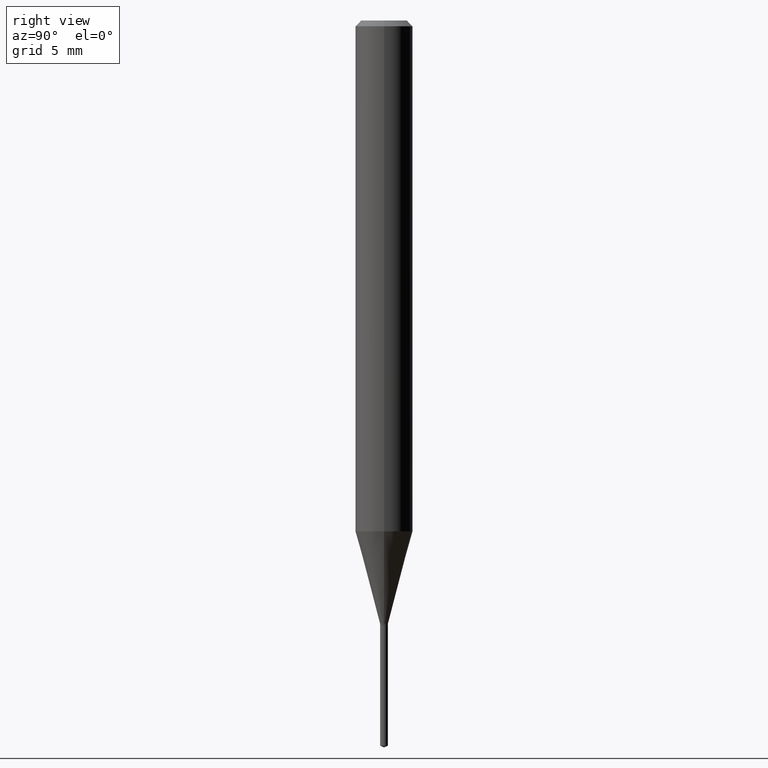
[diagram: clean part render]
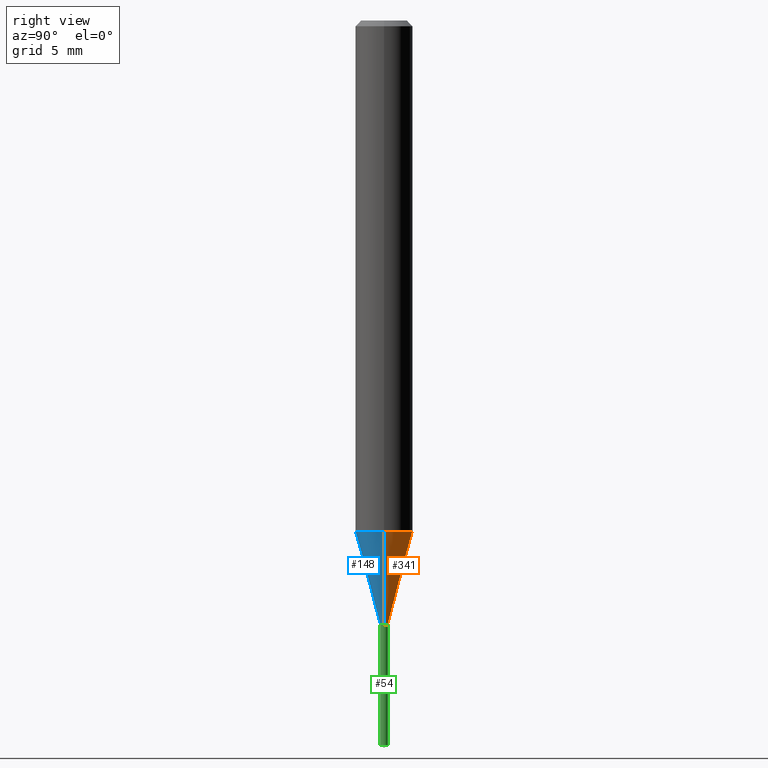
[diagram: same view with three faces highlighted in distinct colors, each labeled with its STEP entity id]
A machine part, right view with three faces highlighted in distinct colors.
Their STEP definitions:

[orange] entity #341 — the highlighted conical surface has half-angle 15 deg.
#8 = DIRECTION ( 'NONE',  ( -0.2588190451025211281, 5.211531920934547886E-15, 0.9659258262890679791 ) ) ;
#12 = LINE ( 'NONE', #240, #439 ) ;
#25 = DIRECTION ( 'NONE',  ( 0.2588190451025211281, 1.565188264969622954E-15, 0.9659258262890679791 ) ) ;
#29 = AXIS2_PLACEMENT_3D ( 'NONE', #307, #64, #231 ) ;
#35 = CARTESIAN_POINT ( 'NONE',  ( 0.05905000000000013016, -4.083166651296605957E-15, -1.051365408813987212 ) ) ;
#41 = CIRCLE ( 'NONE', #29, 0.05905000000000013016 ) ;
#49 = VERTEX_POINT ( 'NONE', #124 ) ;
#55 = VECTOR ( 'NONE', #25, 39.37007874015748854 ) ;
#64 = DIRECTION ( 'NONE',  ( -2.445468806185136597E-29, 3.491481338843145583E-15, 1.000000000000000000 ) ) ;
#77 = EDGE_LOOP ( 'NONE', ( #261, #358, #79, #306 ) ) ;
#79 = ORIENTED_EDGE ( 'NONE', *, *, #273, .F. ) ;
#84 = VERTEX_POINT ( 'NONE', #369 ) ;
#86 = VERTEX_POINT ( 'NONE', #35 ) ;
#104 = FACE_OUTER_BOUND ( 'NONE', #77, .T. ) ;
#124 = CARTESIAN_POINT ( 'NONE',  ( -0.05905000000000013016, -3.251247219712891149E-15, -1.051365408813987212 ) ) ;
#140 = DIRECTION ( 'NONE',  ( -2.445468806185136597E-29, 3.491481338843145583E-15, 1.000000000000000000 ) ) ;
#144 = CIRCLE ( 'NONE', #311, 0.008049999999999999864 ) ;
#160 = LINE ( 'NONE', #315, #55 ) ;
#170 = CARTESIAN_POINT ( 'NONE',  ( -0.008049999999999999864, -4.281490595484747109E-15, -1.241700000000000026 ) ) ;
#231 = DIRECTION ( 'NONE',  ( 1.000000000000000000, -6.982962677686265133E-15, 0.000000000000000000 ) ) ;
#240 = CARTESIAN_POINT ( 'NONE',  ( -0.008049999999999999864, -4.278173688212845858E-15, -1.241700000000000026 ) ) ;
#247 = EDGE_CURVE ( 'NONE', #84, #349, #144, .T. ) ;
#253 = DIRECTION ( 'NONE',  ( -2.445468806185136597E-29, 3.491481338843145583E-15, 1.000000000000000000 ) ) ;
#261 = ORIENTED_EDGE ( 'NONE', *, *, #247, .T. ) ;
#266 = DIRECTION ( 'NONE',  ( 1.000000000000000000, -6.982962677686314831E-15, 0.000000000000000000 ) ) ;
#273 = EDGE_CURVE ( 'NONE', #86, #49, #41, .T. ) ;
#286 = CARTESIAN_POINT ( 'NONE',  ( 3.036538616640084053E-29, -4.335372378441533934E-15, -1.241700000000000026 ) ) ;
#305 = EDGE_CURVE ( 'NONE', #349, #49, #12, .T. ) ;
#306 = ORIENTED_EDGE ( 'NONE', *, *, #446, .F. ) ;
#307 = CARTESIAN_POINT ( 'NONE',  ( 2.571081311156689503E-29, -3.670822705179231037E-15, -1.051365408813987212 ) ) ;
#311 = AXIS2_PLACEMENT_3D ( 'NONE', #478, #253, #266 ) ;
#315 = CARTESIAN_POINT ( 'NONE',  ( 0.008049999999999999864, -4.391585227996908716E-15, -1.241700000000000026 ) ) ;
#341 = ADVANCED_FACE ( 'NONE', ( #104 ), #352, .T. ) ;
#349 = VERTEX_POINT ( 'NONE', #170 ) ;
#352 = CONICAL_SURFACE ( 'NONE', #483, 0.008049999999999999864, 0.2617993877991498519 ) ;
#358 = ORIENTED_EDGE ( 'NONE', *, *, #305, .T. ) ;
#369 = CARTESIAN_POINT ( 'NONE',  ( 0.008049999999999999864, -4.391585227996908716E-15, -1.241700000000000026 ) ) ;
#439 = VECTOR ( 'NONE', #8, 39.37007874015748854 ) ;
#441 = DIRECTION ( 'NONE',  ( 1.000000000000000000, -6.982962677686314831E-15, 0.000000000000000000 ) ) ;
#446 = EDGE_CURVE ( 'NONE', #84, #86, #160, .T. ) ;
#478 = CARTESIAN_POINT ( 'NONE',  ( 3.036538616640084053E-29, -4.335372378441533934E-15, -1.241700000000000026 ) ) ;
#483 = AXIS2_PLACEMENT_3D ( 'NONE', #286, #140, #441 ) ;

[blue] entity #148 — the highlighted conical surface has half-angle 15 deg.
#8 = DIRECTION ( 'NONE',  ( -0.2588190451025211281, 5.211531920934547886E-15, 0.9659258262890679791 ) ) ;
#12 = LINE ( 'NONE', #240, #439 ) ;
#14 = DIRECTION ( 'NONE',  ( 1.000000000000000000, -6.982962677686314831E-15, 0.000000000000000000 ) ) ;
#25 = DIRECTION ( 'NONE',  ( 0.2588190451025211281, 1.565188264969622954E-15, 0.9659258262890679791 ) ) ;
#35 = CARTESIAN_POINT ( 'NONE',  ( 0.05905000000000013016, -4.083166651296605957E-15, -1.051365408813987212 ) ) ;
#49 = VERTEX_POINT ( 'NONE', #124 ) ;
#55 = VECTOR ( 'NONE', #25, 39.37007874015748854 ) ;
#60 = DIRECTION ( 'NONE',  ( -2.445468806185136597E-29, 3.491481338843145583E-15, 1.000000000000000000 ) ) ;
#84 = VERTEX_POINT ( 'NONE', #369 ) ;
#86 = VERTEX_POINT ( 'NONE', #35 ) ;
#100 = CIRCLE ( 'NONE', #219, 0.008049999999999999864 ) ;
#109 = EDGE_CURVE ( 'NONE', #349, #84, #100, .T. ) ;
#124 = CARTESIAN_POINT ( 'NONE',  ( -0.05905000000000013016, -3.251247219712891149E-15, -1.051365408813987212 ) ) ;
#133 = FACE_OUTER_BOUND ( 'NONE', #153, .T. ) ;
#148 = ADVANCED_FACE ( 'NONE', ( #133 ), #245, .T. ) ;
#153 = EDGE_LOOP ( 'NONE', ( #155, #296, #417, #458 ) ) ;
#155 = ORIENTED_EDGE ( 'NONE', *, *, #305, .F. ) ;
#160 = LINE ( 'NONE', #315, #55 ) ;
#163 = DIRECTION ( 'NONE',  ( -2.445468806185136597E-29, 3.491481338843145583E-15, 1.000000000000000000 ) ) ;
#170 = CARTESIAN_POINT ( 'NONE',  ( -0.008049999999999999864, -4.281490595484747109E-15, -1.241700000000000026 ) ) ;
#215 = EDGE_CURVE ( 'NONE', #49, #86, #455, .T. ) ;
#219 = AXIS2_PLACEMENT_3D ( 'NONE', #251, #60, #14 ) ;
#240 = CARTESIAN_POINT ( 'NONE',  ( -0.008049999999999999864, -4.278173688212845858E-15, -1.241700000000000026 ) ) ;
#245 = CONICAL_SURFACE ( 'NONE', #350, 0.008049999999999999864, 0.2617993877991498519 ) ;
#251 = CARTESIAN_POINT ( 'NONE',  ( 3.036538616640084053E-29, -4.335372378441533934E-15, -1.241700000000000026 ) ) ;
#284 = DIRECTION ( 'NONE',  ( 1.000000000000000000, -6.982962677686265133E-15, 0.000000000000000000 ) ) ;
#296 = ORIENTED_EDGE ( 'NONE', *, *, #109, .T. ) ;
#305 = EDGE_CURVE ( 'NONE', #349, #49, #12, .T. ) ;
#315 = CARTESIAN_POINT ( 'NONE',  ( 0.008049999999999999864, -4.391585227996908716E-15, -1.241700000000000026 ) ) ;
#325 = CARTESIAN_POINT ( 'NONE',  ( 2.571081311156689503E-29, -3.670822705179231037E-15, -1.051365408813987212 ) ) ;
#349 = VERTEX_POINT ( 'NONE', #170 ) ;
#350 = AXIS2_PLACEMENT_3D ( 'NONE', #399, #163, #397 ) ;
#369 = CARTESIAN_POINT ( 'NONE',  ( 0.008049999999999999864, -4.391585227996908716E-15, -1.241700000000000026 ) ) ;
#397 = DIRECTION ( 'NONE',  ( 1.000000000000000000, -6.982962677686314831E-15, 0.000000000000000000 ) ) ;
#399 = CARTESIAN_POINT ( 'NONE',  ( 3.036538616640084053E-29, -4.335372378441533934E-15, -1.241700000000000026 ) ) ;
#417 = ORIENTED_EDGE ( 'NONE', *, *, #446, .T. ) ;
#439 = VECTOR ( 'NONE', #8, 39.37007874015748854 ) ;
#446 = EDGE_CURVE ( 'NONE', #84, #86, #160, .T. ) ;
#455 = CIRCLE ( 'NONE', #474, 0.05905000000000013016 ) ;
#458 = ORIENTED_EDGE ( 'NONE', *, *, #215, .F. ) ;
#471 = DIRECTION ( 'NONE',  ( -2.445468806185136597E-29, 3.491481338843145583E-15, 1.000000000000000000 ) ) ;
#474 = AXIS2_PLACEMENT_3D ( 'NONE', #325, #471, #284 ) ;

[green] entity #54 — the highlighted cylindrical surface (edge-blend (fillet) strip) has radius 0.2045 mm, axis along (-0, 0, 1).
#22 = EDGE_CURVE ( 'NONE', #233, #43, #473, .T. ) ;
#30 = CARTESIAN_POINT ( 'NONE',  ( 3.042407741774928155E-29, -4.343751933654757151E-15, -1.244099999999999984 ) ) ;
#33 = CARTESIAN_POINT ( 'NONE',  ( -5.621284955534401592E-17, -0.008050000000004343612, -1.244099999999999984 ) ) ;
#43 = VERTEX_POINT ( 'NONE', #265 ) ;
#44 = LINE ( 'NONE', #316, #142 ) ;
#46 = EDGE_CURVE ( 'NONE', #159, #233, #423, .T. ) ;
#54 = ADVANCED_FACE ( 'NONE', ( #250 ), #99, .T. ) ;
#63 = CARTESIAN_POINT ( 'NONE',  ( 3.042407741774928155E-29, -4.343751933654757151E-15, -1.244099999999999984 ) ) ;
#65 = CARTESIAN_POINT ( 'NONE',  ( -5.621284955533795155E-17, -0.008050000000005212708, -1.492346223351852297 ) ) ;
#66 = CIRCLE ( 'NONE', #121, 0.008050000000000001599 ) ;
#92 = EDGE_CURVE ( 'NONE', #126, #43, #44, .T. ) ;
#94 = ORIENTED_EDGE ( 'NONE', *, *, #92, .T. ) ;
#95 = CARTESIAN_POINT ( 'NONE',  ( 3.648800117005231285E-29, -5.211481409941128665E-15, -1.492346223351852297 ) ) ;
#99 = CYLINDRICAL_SURFACE ( 'NONE', #360, 0.008049999999999999864 ) ;
#111 = DIRECTION ( 'NONE',  ( -2.442705339250343681E-29, 3.495438780780538895E-15, 1.000000000000000000 ) ) ;
#120 = DIRECTION ( 'NONE',  ( -6.982962677686265133E-15, -1.000000000000000000, 0.000000000000000000 ) ) ;
#121 = AXIS2_PLACEMENT_3D ( 'NONE', #95, #462, #324 ) ;
#126 = VERTEX_POINT ( 'NONE', #287 ) ;
#132 = EDGE_CURVE ( 'NONE', #159, #126, #66, .T. ) ;
#142 = VECTOR ( 'NONE', #396, 39.37007874015748143 ) ;
#159 = VERTEX_POINT ( 'NONE', #65 ) ;
#161 = DIRECTION ( 'NONE',  ( -6.982962677686265133E-15, -1.000000000000000000, 0.000000000000000000 ) ) ;
#175 = VECTOR ( 'NONE', #457, 39.37007874015748143 ) ;
#233 = VERTEX_POINT ( 'NONE', #33 ) ;
#250 = FACE_OUTER_BOUND ( 'NONE', #309, .T. ) ;
#265 = CARTESIAN_POINT ( 'NONE',  ( 5.719869022872459812E-17, 0.008049999999995656116, -1.244099999999999984 ) ) ;
#287 = CARTESIAN_POINT ( 'NONE',  ( 5.719869022872454881E-17, 0.008049999999994788755, -1.492346223351852297 ) ) ;
#309 = EDGE_LOOP ( 'NONE', ( #418, #94, #347, #375 ) ) ;
#310 = CARTESIAN_POINT ( 'NONE',  ( -5.621284955534401592E-17, -0.008050000000004343612, -1.244099999999999984 ) ) ;
#316 = CARTESIAN_POINT ( 'NONE',  ( 5.719869022871848444E-17, 0.008049999999995656116, -1.244099999999999984 ) ) ;
#324 = DIRECTION ( 'NONE',  ( -6.982962677686265922E-15, -1.000000000000000000, 0.000000000000000000 ) ) ;
#347 = ORIENTED_EDGE ( 'NONE', *, *, #22, .F. ) ;
#360 = AXIS2_PLACEMENT_3D ( 'NONE', #63, #398, #161 ) ;
#375 = ORIENTED_EDGE ( 'NONE', *, *, #46, .F. ) ;
#391 = AXIS2_PLACEMENT_3D ( 'NONE', #30, #111, #120 ) ;
#396 = DIRECTION ( 'NONE',  ( -2.442705339250343401E-29, 3.495438780780538501E-15, 1.000000000000000000 ) ) ;
#398 = DIRECTION ( 'NONE',  ( -2.442705339250343681E-29, 3.495438780780538895E-15, 1.000000000000000000 ) ) ;
#418 = ORIENTED_EDGE ( 'NONE', *, *, #132, .T. ) ;
#423 = LINE ( 'NONE', #310, #175 ) ;
#457 = DIRECTION ( 'NONE',  ( -2.442705339250343401E-29, 3.495438780780538501E-15, 1.000000000000000000 ) ) ;
#462 = DIRECTION ( 'NONE',  ( -2.442705339250343681E-29, 3.495438780780538895E-15, 1.000000000000000000 ) ) ;
#473 = CIRCLE ( 'NONE', #391, 0.008049999999999999864 ) ;